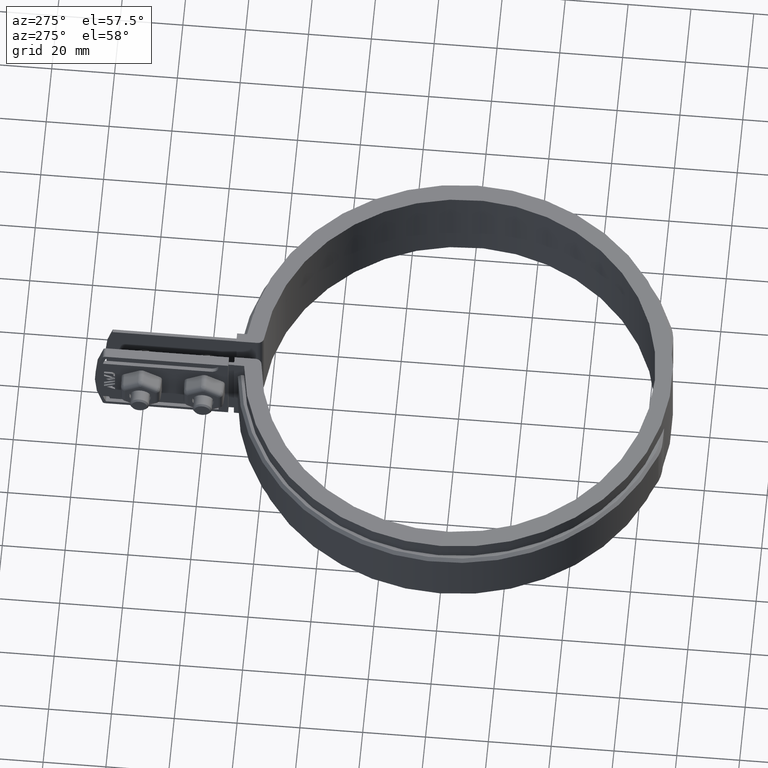
[diagram: clean part render]
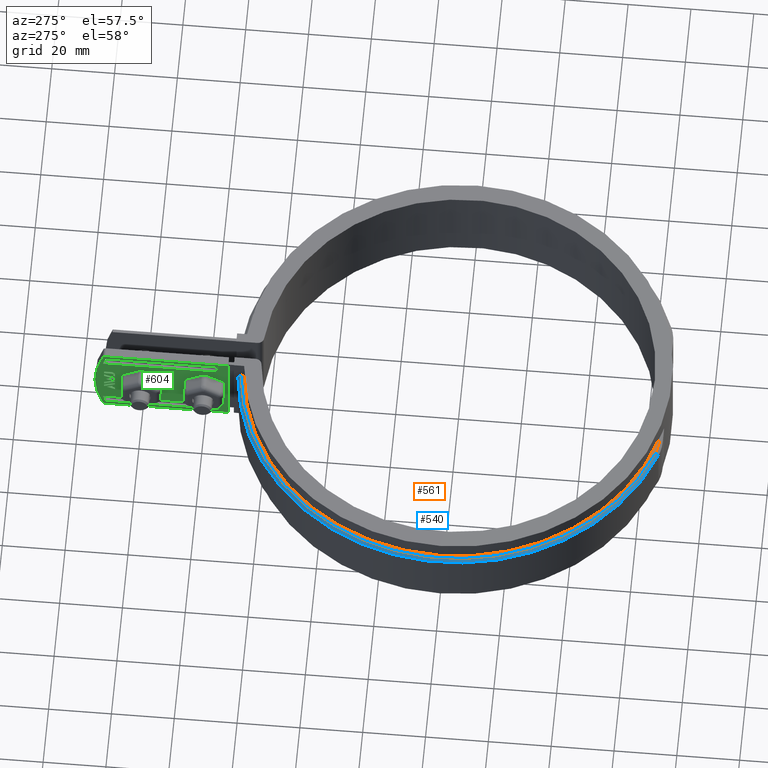
[diagram: same view with three faces highlighted in distinct colors, each labeled with its STEP entity id]
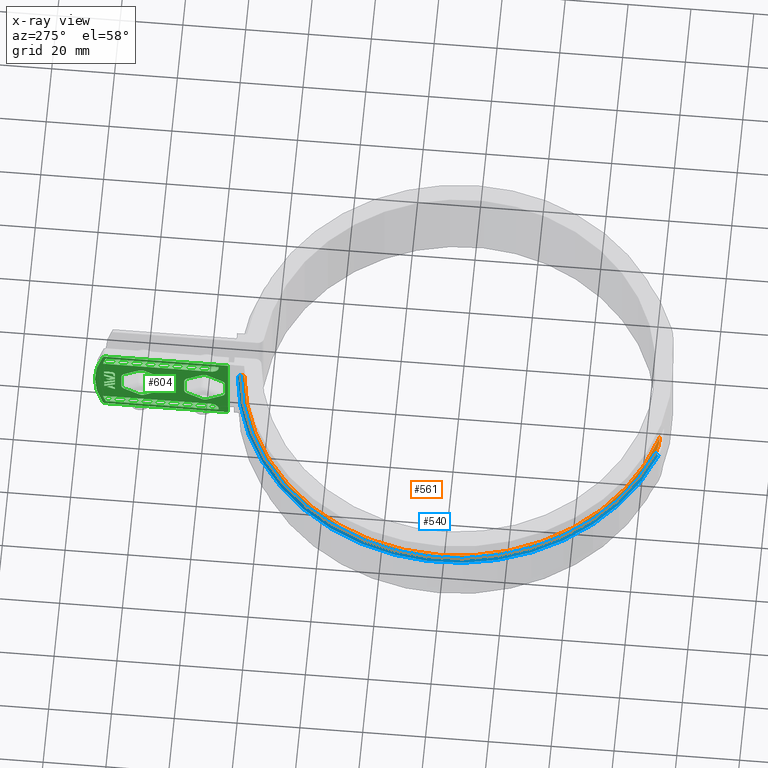
[diagram: x-ray of the same camera — body ghosted, the three highlighted faces saturated]
A machine part, auxiliary view with three faces highlighted in distinct colors.
The next image is the same camera in x-ray (body ghosted, the three faces saturated) — at least one of them is partly hidden behind the body in this view.
Their STEP definitions:

[orange] entity #561 — the highlighted planar face has unit normal (0, 0, 1).
#561 = ADVANCED_FACE( '', ( #1023 ), #1024, .T. );
#1023 = FACE_OUTER_BOUND( '', #2322, .T. );
#1024 = PLANE( '', #2323 );
#2322 = EDGE_LOOP( '', ( #4955, #4956, #4957, #4958, #4959 ) );
#2323 = AXIS2_PLACEMENT_3D( '', #4960, #4961, #4962 );
#4955 = ORIENTED_EDGE( '', *, *, #7170, .T. );
#4956 = ORIENTED_EDGE( '', *, *, #7188, .T. );
#4957 = ORIENTED_EDGE( '', *, *, #7151, .T. );
#4958 = ORIENTED_EDGE( '', *, *, #7126, .T. );
#4959 = ORIENTED_EDGE( '', *, *, #7121, .T. );
#4960 = CARTESIAN_POINT( '', ( 8.67361737988404E-016, 0.000000000000000, 8.50000000000000 ) );
#4961 = DIRECTION( '', ( 0.000000000000000, 0.000000000000000, 1.00000000000000 ) );
#4962 = DIRECTION( '', ( -0.0714285714285714, 0.997445717412067, 0.000000000000000 ) );
#7121 = EDGE_CURVE( '', #8214, #8218, #8220, .T. );
#7126 = EDGE_CURVE( '', #8229, #8214, #8230, .T. );
#7151 = EDGE_CURVE( '', #8272, #8229, #8273, .F. );
#7170 = EDGE_CURVE( '', #8218, #8301, #8303, .T. );
#7188 = EDGE_CURVE( '', #8301, #8272, #8327, .T. );
#8214 = VERTEX_POINT( '', #11806 );
#8218 = VERTEX_POINT( '', #11813 );
#8220 = CIRCLE( '', #11816, 69.0000000000000 );
#8229 = VERTEX_POINT( '', #11831 );
#8230 = LINE( '', #11832, #11833 );
#8272 = VERTEX_POINT( '', #11898 );
#8273 = CIRCLE( '', #11899, 68.0000000000000 );
#8301 = VERTEX_POINT( '', #11933 );
#8303 = CIRCLE( '', #11936, 14.0000000000000 );
#8327 = LINE( '', #11971, #11972 );
#11806 = CARTESIAN_POINT( '', ( -5.99999999999999, 68.7386354243376, 8.50000000000000 ) );
#11813 = CARTESIAN_POINT( '', ( -23.7131492448270, -64.7972727272727, 8.50000000000000 ) );
#11816 = AXIS2_PLACEMENT_3D( '', #13717, #13718, #13719 );
#11831 = CARTESIAN_POINT( '', ( -5.99999999999999, 67.7347768875044, 8.50000000000000 ) );
#11832 = CARTESIAN_POINT( '', ( -5.99999999999999, 71.0000000000000, 8.50000000000000 ) );
#11833 = VECTOR( '', #13723, 1000.00000000000 );
#11898 = CARTESIAN_POINT( '', ( -17.7222318007637, -65.6500000000000, 8.50000000000000 ) );
#11899 = AXIS2_PLACEMENT_3D( '', #13756, #13757, #13758 );
#11933 = CARTESIAN_POINT( '', ( -18.9017856299346, -65.6500000000000, 8.50000000000000 ) );
#11936 = AXIS2_PLACEMENT_3D( '', #13799, #13800, #13801 );
#11971 = CARTESIAN_POINT( '', ( 8.67361737988404E-016, -65.6500000000000, 8.50000000000000 ) );
#11972 = VECTOR( '', #13831, 1000.00000000000 );
#13717 = CARTESIAN_POINT( '', ( 8.67361737988404E-016, 0.000000000000000, 8.50000000000000 ) );
#13718 = DIRECTION( '', ( 0.000000000000000, 0.000000000000000, 1.00000000000000 ) );
#13719 = DIRECTION( '', ( 1.00000000000000, 0.000000000000000, 0.000000000000000 ) );
#13723 = DIRECTION( '', ( 8.32667268468867E-017, 1.00000000000000, 0.000000000000000 ) );
#13756 = CARTESIAN_POINT( '', ( 1.73472347597681E-015, 2.77555756156289E-014, 8.50000000000000 ) );
#13757 = DIRECTION( '', ( 0.000000000000000, 0.000000000000000, 1.00000000000000 ) );
#13758 = DIRECTION( '', ( 1.00000000000000, 0.000000000000000, 0.000000000000000 ) );
#13799 = CARTESIAN_POINT( '', ( -18.9017856299346, -51.6500000000000, 8.50000000000000 ) );
#13800 = DIRECTION( '', ( 0.000000000000000, 0.000000000000000, 1.00000000000000 ) );
#13801 = DIRECTION( '', ( 1.00000000000000, 0.000000000000000, 0.000000000000000 ) );
#13831 = DIRECTION( '', ( 1.00000000000000, 0.000000000000000, 0.000000000000000 ) );

[blue] entity #540 — the highlighted conical surface has half-angle 45 deg.
#540 = ADVANCED_FACE( '', ( #980 ), #981, .T. );
#980 = FACE_OUTER_BOUND( '', #2277, .T. );
#981 = CONICAL_SURFACE( '', #2278, 69.0000000000000, 0.785398163397455 );
#2277 = EDGE_LOOP( '', ( #4734, #4735, #4736, #4737 ) );
#2278 = AXIS2_PLACEMENT_3D( '', #4738, #4739, #4740 );
#4734 = ORIENTED_EDGE( '', *, *, #7118, .F. );
#4735 = ORIENTED_EDGE( '', *, *, #7119, .F. );
#4736 = ORIENTED_EDGE( '', *, *, #7120, .F. );
#4737 = ORIENTED_EDGE( '', *, *, #7121, .F. );
#4738 = CARTESIAN_POINT( '', ( 8.67361737988404E-016, 0.000000000000000, 8.50000000000000 ) );
#4739 = DIRECTION( '', ( 0.000000000000000, 0.000000000000000, -1.00000000000000 ) );
#4740 = DIRECTION( '', ( -1.00000000000000, 0.000000000000000, 0.000000000000000 ) );
#7118 = EDGE_CURVE( '', #8213, #8214, #8215, .T. );
#7119 = EDGE_CURVE( '', #8216, #8213, #8217, .F. );
#7120 = EDGE_CURVE( '', #8218, #8216, #8219, .T. );
#7121 = EDGE_CURVE( '', #8214, #8218, #8220, .T. );
#8213 = VERTEX_POINT( '', #11805 );
#8214 = VERTEX_POINT( '', #11806 );
#8215 = B_SPLINE_CURVE_WITH_KNOTS( '', 3, ( #11807, #11808, #11809, #11810 ), .UNSPECIFIED., .F., .F., ( 4, 4 ), ( 0.000000000000000, 0.00141686604507065 ), .UNSPECIFIED. );
#8216 = VERTEX_POINT( '', #11811 );
#8217 = CIRCLE( '', #11812, 70.0000000000000 );
#8218 = VERTEX_POINT( '', #11813 );
#8219 = LINE( '', #11814, #11815 );
#8220 = CIRCLE( '', #11816, 69.0000000000000 );
#11805 = CARTESIAN_POINT( '', ( -5.99999999999999, 69.7423830966508, 7.50000000000000 ) );
#11806 = CARTESIAN_POINT( '', ( -5.99999999999999, 68.7386354243376, 8.50000000000000 ) );
#11807 = CARTESIAN_POINT( '', ( -5.99999999999999, 69.7423830966508, 7.50000000000000 ) );
#11808 = CARTESIAN_POINT( '', ( -5.99999999999999, 69.4078094787816, 7.83334230616380 ) );
#11809 = CARTESIAN_POINT( '', ( -5.99999999999999, 69.0732270511451, 8.16667577027313 ) );
#11810 = CARTESIAN_POINT( '', ( -5.99999999999999, 68.7386354243376, 8.50000000000001 ) );
#11811 = CARTESIAN_POINT( '', ( -24.0568180744622, -65.7363636363636, 7.50000000000000 ) );
#11812 = AXIS2_PLACEMENT_3D( '', #13713, #13714, #13715 );
#11813 = CARTESIAN_POINT( '', ( -23.7131492448270, -64.7972727272727, 8.50000000000000 ) );
#11814 = CARTESIAN_POINT( '', ( -23.7131492448270, -64.7972727272727, 8.50000000000000 ) );
#11815 = VECTOR( '', #13716, 1000.00000000000 );
#11816 = AXIS2_PLACEMENT_3D( '', #13717, #13718, #13719 );
#13713 = CARTESIAN_POINT( '', ( 8.67361737988404E-016, 0.000000000000000, 7.50000000000000 ) );
#13714 = DIRECTION( '', ( 0.000000000000000, 0.000000000000000, 1.00000000000000 ) );
#13715 = DIRECTION( '', ( 1.00000000000000, 0.000000000000000, 0.000000000000000 ) );
#13716 = DIRECTION( '', ( -0.243010559917481, -0.664037549968828, -0.707106781186539 ) );
#13717 = CARTESIAN_POINT( '', ( 8.67361737988404E-016, 0.000000000000000, 8.50000000000000 ) );
#13718 = DIRECTION( '', ( 0.000000000000000, 0.000000000000000, 1.00000000000000 ) );
#13719 = DIRECTION( '', ( 1.00000000000000, 0.000000000000000, 0.000000000000000 ) );

[green] entity #604 — the highlighted planar face has unit normal (-1, 0, -0).
#604 = ADVANCED_FACE( '', ( #1115, #1116, #1117, #1118, #1119, #1120, #1121, #1122, #1123, #1124 ), #1125, .T. );
#1115 = FACE_BOUND( '', #2414, .T. );
#1116 = FACE_BOUND( '', #2415, .T. );
#1117 = FACE_BOUND( '', #2416, .T. );
#1118 = FACE_BOUND( '', #2417, .T. );
#1119 = FACE_BOUND( '', #2418, .T. );
#1120 = FACE_OUTER_BOUND( '', #2419, .T. );
#1121 = FACE_BOUND( '', #2420, .T. );
#1122 = FACE_BOUND( '', #2421, .T. );
#1123 = FACE_BOUND( '', #2422, .T. );
#1124 = FACE_BOUND( '', #2423, .T. );
#1125 = PLANE( '', #2424 );
#2414 = EDGE_LOOP( '', ( #5259, #5260, #5261, #5262, #5263 ) );
#2415 = EDGE_LOOP( '', ( #5264, #5265, #5266, #5267 ) );
#2416 = EDGE_LOOP( '', ( #5268, #5269, #5270, #5271, #5272 ) );
#2417 = EDGE_LOOP( '', ( #5273, #5274, #5275, #5276, #5277, #5278, #5279, #5280, #5281, #5282, #5283, #5284 ) );
#2418 = EDGE_LOOP( '', ( #5285, #5286, #5287, #5288, #5289, #5290, #5291, #5292, #5293, #5294, #5295, #5296 ) );
#2419 = EDGE_LOOP( '', ( #5297, #5298, #5299, #5300, #5301, #5302 ) );
#2420 = EDGE_LOOP( '', ( #5303, #5304, #5305, #5306, #5307 ) );
#2421 = EDGE_LOOP( '', ( #5308, #5309, #5310, #5311, #5312, #5313, #5314, #5315, #5316, #5317, #5318, #5319, #5320, #5321, #5322, #5323, #5324, #5325, #5326, #5327, #5328, #5329, #5330, #5331, #5332, #5333, #5334, #5335, #5336, #5337, #5338, #5339, #5340, #5341, #5342, #5343, #5344, #5345, #5346, #5347 ) );
#2422 = EDGE_LOOP( '', ( #5348, #5349, #5350, #5351, #5352, #5353, #5354 ) );
#2423 = EDGE_LOOP( '', ( #5355, #5356, #5357, #5358 ) );
#2424 = AXIS2_PLACEMENT_3D( '', #5359, #5360, #5361 );
#5259 = ORIENTED_EDGE( '', *, *, #7249, .T. );
#5260 = ORIENTED_EDGE( '', *, *, #7250, .T. );
#5261 = ORIENTED_EDGE( '', *, *, #7251, .T. );
#5262 = ORIENTED_EDGE( '', *, *, #7252, .T. );
#5263 = ORIENTED_EDGE( '', *, *, #7253, .T. );
#5264 = ORIENTED_EDGE( '', *, *, #7254, .T. );
#5265 = ORIENTED_EDGE( '', *, *, #7255, .T. );
#5266 = ORIENTED_EDGE( '', *, *, #7256, .T. );
#5267 = ORIENTED_EDGE( '', *, *, #7257, .T. );
#5268 = ORIENTED_EDGE( '', *, *, #7258, .T. );
#5269 = ORIENTED_EDGE( '', *, *, #7259, .F. );
#5270 = ORIENTED_EDGE( '', *, *, #7260, .T. );
#5271 = ORIENTED_EDGE( '', *, *, #7261, .T. );
#5272 = ORIENTED_EDGE( '', *, *, #7262, .T. );
#5273 = ORIENTED_EDGE( '', *, *, #7263, .F. );
#5274 = ORIENTED_EDGE( '', *, *, #7264, .F. );
#5275 = ORIENTED_EDGE( '', *, *, #7265, .F. );
#5276 = ORIENTED_EDGE( '', *, *, #7266, .F. );
#5277 = ORIENTED_EDGE( '', *, *, #7267, .F. );
#5278 = ORIENTED_EDGE( '', *, *, #7268, .F. );
#5279 = ORIENTED_EDGE( '', *, *, #7269, .F. );
#5280 = ORIENTED_EDGE( '', *, *, #7270, .F. );
#5281 = ORIENTED_EDGE( '', *, *, #7271, .F. );
#5282 = ORIENTED_EDGE( '', *, *, #7272, .F. );
#5283 = ORIENTED_EDGE( '', *, *, #7273, .F. );
#5284 = ORIENTED_EDGE( '', *, *, #7274, .F. );
#5285 = ORIENTED_EDGE( '', *, *, #7275, .F. );
#5286 = ORIENTED_EDGE( '', *, *, #7276, .F. );
#5287 = ORIENTED_EDGE( '', *, *, #7277, .F. );
#5288 = ORIENTED_EDGE( '', *, *, #7278, .F. );
#5289 = ORIENTED_EDGE( '', *, *, #7279, .F. );
#5290 = ORIENTED_EDGE( '', *, *, #7280, .F. );
#5291 = ORIENTED_EDGE( '', *, *, #7281, .F. );
#5292 = ORIENTED_EDGE( '', *, *, #7282, .F. );
#5293 = ORIENTED_EDGE( '', *, *, #7283, .F. );
#5294 = ORIENTED_EDGE( '', *, *, #7284, .F. );
#5295 = ORIENTED_EDGE( '', *, *, #7285, .F. );
#5296 = ORIENTED_EDGE( '', *, *, #7286, .F. );
#5297 = ORIENTED_EDGE( '', *, *, #7287, .T. );
#5298 = ORIENTED_EDGE( '', *, *, #7288, .T. );
#5299 = ORIENTED_EDGE( '', *, *, #7289, .T. );
#5300 = ORIENTED_EDGE( '', *, *, #7290, .T. );
#5301 = ORIENTED_EDGE( '', *, *, #7291, .T. );
#5302 = ORIENTED_EDGE( '', *, *, #7292, .T. );
#5303 = ORIENTED_EDGE( '', *, *, #7293, .T. );
#5304 = ORIENTED_EDGE( '', *, *, #7294, .T. );
#5305 = ORIENTED_EDGE( '', *, *, #7295, .T. );
#5306 = ORIENTED_EDGE( '', *, *, #7296, .T. );
#5307 = ORIENTED_EDGE( '', *, *, #7297, .F. );
#5308 = ORIENTED_EDGE( '', *, *, #7298, .T. );
#5309 = ORIENTED_EDGE( '', *, *, #7299, .T. );
#5310 = ORIENTED_EDGE( '', *, *, #7300, .T. );
#5311 = ORIENTED_EDGE( '', *, *, #7301, .T. );
#5312 = ORIENTED_EDGE( '', *, *, #7302, .T. );
#5313 = ORIENTED_EDGE( '', *, *, #7303, .T. );
#5314 = ORIENTED_EDGE( '', *, *, #7304, .T. );
#5315 = ORIENTED_EDGE( '', *, *, #7305, .T. );
#5316 = ORIENTED_EDGE( '', *, *, #7306, .T. );
#5317 = ORIENTED_EDGE( '', *, *, #7307, .T. );
#5318 = ORIENTED_EDGE( '', *, *, #7308, .T. );
#5319 = ORIENTED_EDGE( '', *, *, #7309, .T. );
#5320 = ORIENTED_EDGE( '', *, *, #7310, .T. );
#5321 = ORIENTED_EDGE( '', *, *, #7311, .T. );
#5322 = ORIENTED_EDGE( '', *, *, #7312, .T. );
#5323 = ORIENTED_EDGE( '', *, *, #7313, .T. );
#5324 = ORIENTED_EDGE( '', *, *, #7314, .T. );
#5325 = ORIENTED_EDGE( '', *, *, #7315, .T. );
#5326 = ORIENTED_EDGE( '', *, *, #7316, .T. );
#5327 = ORIENTED_EDGE( '', *, *, #7317, .T. );
#5328 = ORIENTED_EDGE( '', *, *, #7318, .T. );
#5329 = ORIENTED_EDGE( '', *, *, #7319, .T. );
#5330 = ORIENTED_EDGE( '', *, *, #7320, .T. );
#5331 = ORIENTED_EDGE( '', *, *, #7321, .T. );
#5332 = ORIENTED_EDGE( '', *, *, #7322, .T. );
#5333 = ORIENTED_EDGE( '', *, *, #7323, .T. );
#5334 = ORIENTED_EDGE( '', *, *, #7324, .T. );
#5335 = ORIENTED_EDGE( '', *, *, #7325, .T. );
#5336 = ORIENTED_EDGE( '', *, *, #7326, .T. );
#5337 = ORIENTED_EDGE( '', *, *, #7327, .T. );
#5338 = ORIENTED_EDGE( '', *, *, #7328, .T. );
#5339 = ORIENTED_EDGE( '', *, *, #7329, .T. );
#5340 = ORIENTED_EDGE( '', *, *, #7330, .T. );
#5341 = ORIENTED_EDGE( '', *, *, #7331, .T. );
#5342 = ORIENTED_EDGE( '', *, *, #7332, .T. );
#5343 = ORIENTED_EDGE( '', *, *, #7333, .T. );
#5344 = ORIENTED_EDGE( '', *, *, #7334, .T. );
#5345 = ORIENTED_EDGE( '', *, *, #7335, .T. );
#5346 = ORIENTED_EDGE( '', *, *, #7336, .T. );
#5347 = ORIENTED_EDGE( '', *, *, #7337, .T. );
#5348 = ORIENTED_EDGE( '', *, *, #7338, .T. );
#5349 = ORIENTED_EDGE( '', *, *, #7339, .T. );
#5350 = ORIENTED_EDGE( '', *, *, #7340, .T. );
#5351 = ORIENTED_EDGE( '', *, *, #7341, .T. );
#5352 = ORIENTED_EDGE( '', *, *, #7342, .T. );
#5353 = ORIENTED_EDGE( '', *, *, #7343, .T. );
#5354 = ORIENTED_EDGE( '', *, *, #7344, .T. );
#5355 = ORIENTED_EDGE( '', *, *, #7345, .T. );
#5356 = ORIENTED_EDGE( '', *, *, #7346, .T. );
#5357 = ORIENTED_EDGE( '', *, *, #7347, .T. );
#5358 = ORIENTED_EDGE( '', *, *, #7348, .T. );
#5359 = CARTESIAN_POINT( '', ( -6.20000000000013, 78.8103335351257, -7.80278619494368E-012 ) );
#5360 = DIRECTION( '', ( -1.00000000000000, 7.00331983426594E-017, -2.99848040556711E-018 ) );
#5361 = DIRECTION( '', ( 7.00331983426594E-017, 1.00000000000000, 1.27307474615306E-016 ) );
#7249 = EDGE_CURVE( '', #8424, #8425, #8426, .T. );
#7250 = EDGE_CURVE( '', #8425, #8427, #8428, .T. );
#7251 = EDGE_CURVE( '', #8427, #8429, #8430, .T. );
#7252 = EDGE_CURVE( '', #8429, #8431, #8432, .T. );
#7253 = EDGE_CURVE( '', #8431, #8424, #8433, .T. );
#7254 = EDGE_CURVE( '', #8434, #8435, #8436, .T. );
#7255 = EDGE_CURVE( '', #8435, #8437, #8438, .T. );
#7256 = EDGE_CURVE( '', #8437, #8439, #8440, .T. );
#7257 = EDGE_CURVE( '', #8439, #8434, #8441, .T. );
#7258 = EDGE_CURVE( '', #8442, #8443, #8444, .F. );
#7259 = EDGE_CURVE( '', #8445, #8443, #8446, .T. );
#7260 = EDGE_CURVE( '', #8445, #8447, #8448, .T. );
#7261 = EDGE_CURVE( '', #8447, #8449, #8450, .T. );
#7262 = EDGE_CURVE( '', #8449, #8442, #8451, .T. );
#7263 = EDGE_CURVE( '', #8452, #8453, #8454, .F. );
#7264 = EDGE_CURVE( '', #8455, #8452, #8456, .T. );
#7265 = EDGE_CURVE( '', #8457, #8455, #8458, .F. );
#7266 = EDGE_CURVE( '', #8459, #8457, #8460, .T. );
#7267 = EDGE_CURVE( '', #8461, #8459, #8462, .F. );
#7268 = EDGE_CURVE( '', #8463, #8461, #8464, .T. );
#7269 = EDGE_CURVE( '', #8465, #8463, #8466, .F. );
#7270 = EDGE_CURVE( '', #8467, #8465, #8468, .T. );
#7271 = EDGE_CURVE( '', #8469, #8467, #8470, .F. );
#7272 = EDGE_CURVE( '', #8471, #8469, #8472, .T. );
#7273 = EDGE_CURVE( '', #8473, #8471, #8474, .F. );
#7274 = EDGE_CURVE( '', #8453, #8473, #8475, .T. );
#7275 = EDGE_CURVE( '', #8476, #8477, #8478, .F. );
#7276 = EDGE_CURVE( '', #8479, #8476, #8480, .T. );
#7277 = EDGE_CURVE( '', #8481, #8479, #8482, .F. );
#7278 = EDGE_CURVE( '', #8483, #8481, #8484, .T. );
#7279 = EDGE_CURVE( '', #8485, #8483, #8486, .F. );
#7280 = EDGE_CURVE( '', #8487, #8485, #8488, .T. );
#7281 = EDGE_CURVE( '', #8489, #8487, #8490, .F. );
#7282 = EDGE_CURVE( '', #8491, #8489, #8492, .T. );
#7283 = EDGE_CURVE( '', #8493, #8491, #8494, .F. );
#7284 = EDGE_CURVE( '', #8495, #8493, #8496, .T. );
#7285 = EDGE_CURVE( '', #8497, #8495, #8498, .F. );
#7286 = EDGE_CURVE( '', #8477, #8497, #8499, .T. );
#7287 = EDGE_CURVE( '', #8500, #8501, #8502, .T. );
#7288 = EDGE_CURVE( '', #8501, #8503, #8504, .T. );
#7289 = EDGE_CURVE( '', #8503, #8505, #8506, .T. );
#7290 = EDGE_CURVE( '', #8505, #8507, #8508, .T. );
#7291 = EDGE_CURVE( '', #8507, #8509, #8510, .T. );
#7292 = EDGE_CURVE( '', #8509, #8500, #8511, .T. );
#7293 = EDGE_CURVE( '', #8512, #8513, #8514, .F. );
#7294 = EDGE_CURVE( '', #8513, #8515, #8516, .T. );
#7295 = EDGE_CURVE( '', #8515, #8517, #8518, .T. );
#7296 = EDGE_CURVE( '', #8517, #8519, #8520, .T. );
#7297 = EDGE_CURVE( '', #8512, #8519, #8521, .T. );
#7298 = EDGE_CURVE( '', #8522, #8523, #8524, .T. );
#7299 = EDGE_CURVE( '', #8523, #8525, #8526, .T. );
#7300 = EDGE_CURVE( '', #8525, #8527, #8528, .T. );
#7301 = EDGE_CURVE( '', #8527, #8529, #8530, .T. );
#7302 = EDGE_CURVE( '', #8529, #8531, #8532, .T. );
#7303 = EDGE_CURVE( '', #8531, #8533, #8534, .T. );
#7304 = EDGE_CURVE( '', #8533, #8535, #8536, .T. );
#7305 = EDGE_CURVE( '', #8535, #8537, #8538, .T. );
#7306 = EDGE_CURVE( '', #8537, #8539, #8540, .T. );
#7307 = EDGE_CURVE( '', #8539, #8541, #8542, .T. );
#7308 = EDGE_CURVE( '', #8541, #8543, #8544, .T. );
#7309 = EDGE_CURVE( '', #8543, #8545, #8546, .T. );
#7310 = EDGE_CURVE( '', #8545, #8547, #8548, .T. );
#7311 = EDGE_CURVE( '', #8547, #8549, #8550, .T. );
#7312 = EDGE_CURVE( '', #8549, #8551, #8552, .T. );
#7313 = EDGE_CURVE( '', #8551, #8553, #8554, .T. );
#7314 = EDGE_CURVE( '', #8553, #8555, #8556, .T. );
#7315 = EDGE_CURVE( '', #8555, #8557, #8558, .T. );
#7316 = EDGE_CURVE( '', #8557, #8559, #8560, .T. );
#7317 = EDGE_CURVE( '', #8559, #8561, #8562, .T. );
#7318 = EDGE_CURVE( '', #8561, #8563, #8564, .T. );
#7319 = EDGE_CURVE( '', #8563, #8565, #8566, .T. );
#7320 = EDGE_CURVE( '', #8565, #8567, #8568, .T. );
#7321 = EDGE_CURVE( '', #8567, #8569, #8570, .T. );
#7322 = EDGE_CURVE( '', #8569, #8571, #8572, .T. );
#7323 = EDGE_CURVE( '', #8571, #8573, #8574, .T. );
#7324 = EDGE_CURVE( '', #8573, #8575, #8576, .T. );
#7325 = EDGE_CURVE( '', #8575, #8577, #8578, .T. );
#7326 = EDGE_CURVE( '', #8577, #8579, #8580, .T. );
#7327 = EDGE_CURVE( '', #8579, #8581, #8582, .T. );
#7328 = EDGE_CURVE( '', #8581, #8583, #8584, .T. );
#7329 = EDGE_CURVE( '', #8583, #8585, #8586, .T. );
#7330 = EDGE_CURVE( '', #8585, #8587, #8588, .T. );
#7331 = EDGE_CURVE( '', #8587, #8589, #8590, .T. );
#7332 = EDGE_CURVE( '', #8589, #8591, #8592, .T. );
#7333 = EDGE_CURVE( '', #8591, #8593, #8594, .T. );
#7334 = EDGE_CURVE( '', #8593, #8595, #8596, .T. );
#7335 = EDGE_CURVE( '', #8595, #8597, #8598, .T. );
#7336 = EDGE_CURVE( '', #8597, #8599, #8600, .T. );
#7337 = EDGE_CURVE( '', #8599, #8522, #8601, .F. );
#7338 = EDGE_CURVE( '', #8602, #8603, #8604, .T. );
#7339 = EDGE_CURVE( '', #8603, #8605, #8606, .T. );
#7340 = EDGE_CURVE( '', #8605, #8607, #8608, .T. );
#7341 = EDGE_CURVE( '', #8607, #8609, #8610, .T. );
#7342 = EDGE_CURVE( '', #8609, #8611, #8612, .T. );
#7343 = EDGE_CURVE( '', #8611, #8613, #8614, .T. );
#7344 = EDGE_CURVE( '', #8613, #8602, #8615, .T. );
#7345 = EDGE_CURVE( '', #8616, #8617, #8618, .T. );
#7346 = EDGE_CURVE( '', #8617, #8619, #8620, .T. );
#7347 = EDGE_CURVE( '', #8619, #8621, #8622, .T. );
#7348 = EDGE_CURVE( '', #8621, #8616, #8623, .T. );
#8424 = VERTEX_POINT( '', #12117 );
#8425 = VERTEX_POINT( '', #12118 );
#8426 = LINE( '', #12119, #12120 );
#8427 = VERTEX_POINT( '', #12121 );
#8428 = LINE( '', #12122, #12123 );
#8429 = VERTEX_POINT( '', #12124 );
#8430 = LINE( '', #12125, #12126 );
#8431 = VERTEX_POINT( '', #12127 );
#8432 = LINE( '', #12128, #12129 );
#8433 = LINE( '', #12130, #12131 );
#8434 = VERTEX_POINT( '', #12132 );
#8435 = VERTEX_POINT( '', #12133 );
#8436 = LINE( '', #12134, #12135 );
#8437 = VERTEX_POINT( '', #12136 );
#8438 = LINE( '', #12137, #12138 );
#8439 = VERTEX_POINT( '', #12139 );
#8440 = LINE( '', #12140, #12141 );
#8441 = LINE( '', #12142, #12143 );
#8442 = VERTEX_POINT( '', #12144 );
#8443 = VERTEX_POINT( '', #12145 );
#8444 = CIRCLE( '', #12146, 35.2000000000000 );
#8445 = VERTEX_POINT( '', #12147 );
#8446 = LINE( '', #12148, #12149 );
#8447 = VERTEX_POINT( '', #12150 );
#8448 = LINE( '', #12151, #12152 );
#8449 = VERTEX_POINT( '', #12153 );
#8450 = CIRCLE( '', #12154, 2.50000000000000 );
#8451 = LINE( '', #12155, #12156 );
#8452 = VERTEX_POINT( '', #12157 );
#8453 = VERTEX_POINT( '', #12158 );
#8454 = LINE( '', #12159, #12160 );
#8455 = VERTEX_POINT( '', #12161 );
#8456 = CIRCLE( '', #12162, 1.77252045227181 );
#8457 = VERTEX_POINT( '', #12163 );
#8458 = LINE( '', #12164, #12165 );
#8459 = VERTEX_POINT( '', #12166 );
#8460 = CIRCLE( '', #12167, 1.77252045227181 );
#8461 = VERTEX_POINT( '', #12168 );
#8462 = LINE( '', #12169, #12170 );
#8463 = VERTEX_POINT( '', #12171 );
#8464 = CIRCLE( '', #12172, 1.77252045227182 );
#8465 = VERTEX_POINT( '', #12173 );
#8466 = LINE( '', #12174, #12175 );
#8467 = VERTEX_POINT( '', #12176 );
#8468 = CIRCLE( '', #12177, 1.77252045227182 );
#8469 = VERTEX_POINT( '', #12178 );
#8470 = LINE( '', #12179, #12180 );
#8471 = VERTEX_POINT( '', #12181 );
#8472 = CIRCLE( '', #12182, 1.77252045227181 );
#8473 = VERTEX_POINT( '', #12183 );
#8474 = LINE( '', #12184, #12185 );
#8475 = CIRCLE( '', #12186, 1.77252045227182 );
#8476 = VERTEX_POINT( '', #12187 );
#8477 = VERTEX_POINT( '', #12188 );
#8478 = LINE( '', #12189, #12190 );
#8479 = VERTEX_POINT( '', #12191 );
#8480 = CIRCLE( '', #12192, 1.77252045227181 );
#8481 = VERTEX_POINT( '', #12193 );
#8482 = LINE( '', #12194, #12195 );
#8483 = VERTEX_POINT( '', #12196 );
#8484 = CIRCLE( '', #12197, 1.77252045227181 );
#8485 = VERTEX_POINT( '', #12198 );
#8486 = LINE( '', #12199, #12200 );
#8487 = VERTEX_POINT( '', #12201 );
#8488 = CIRCLE( '', #12202, 1.77252045227181 );
#8489 = VERTEX_POINT( '', #12203 );
#8490 = LINE( '', #12204, #12205 );
#8491 = VERTEX_POINT( '', #12206 );
#8492 = CIRCLE( '', #12207, 1.77252045227182 );
#8493 = VERTEX_POINT( '', #12208 );
#8494 = LINE( '', #12209, #12210 );
#8495 = VERTEX_POINT( '', #12211 );
#8496 = CIRCLE( '', #12212, 1.77252045227181 );
#8497 = VERTEX_POINT( '', #12213 );
#8498 = LINE( '', #12214, #12215 );
#8499 = CIRCLE( '', #12216, 1.77252045227182 );
#8500 = VERTEX_POINT( '', #12217 );
#8501 = VERTEX_POINT( '', #12218 );
#8502 = CIRCLE( '', #12219, 36.4000000000000 );
#8503 = VERTEX_POINT( '', #12220 );
#8504 = CIRCLE( '', #12221, 1.00000000000000 );
#8505 = VERTEX_POINT( '', #12222 );
#8506 = LINE( '', #12223, #12224 );
#8507 = VERTEX_POINT( '', #12225 );
#8508 = LINE( '', #12226, #12227 );
#8509 = VERTEX_POINT( '', #12228 );
#8510 = LINE( '', #12229, #12230 );
#8511 = CIRCLE( '', #12231, 1.00000000000000 );
#8512 = VERTEX_POINT( '', #12232 );
#8513 = VERTEX_POINT( '', #12233 );
#8514 = CIRCLE( '', #12234, 35.2000000000000 );
#8515 = VERTEX_POINT( '', #12235 );
#8516 = LINE( '', #12236, #12237 );
#8517 = VERTEX_POINT( '', #12238 );
#8518 = CIRCLE( '', #12239, 2.50000000000000 );
#8519 = VERTEX_POINT( '', #12240 );
#8520 = LINE( '', #12241, #12242 );
#8521 = LINE( '', #12243, #12244 );
#8522 = VERTEX_POINT( '', #12245 );
#8523 = VERTEX_POINT( '', #12246 );
#8524 = LINE( '', #12247, #12248 );
#8525 = VERTEX_POINT( '', #12249 );
#8526 = LINE( '', #12250, #12251 );
#8527 = VERTEX_POINT( '', #12252 );
#8528 = LINE( '', #12253, #12254 );
#8529 = VERTEX_POINT( '', #12255 );
#8530 = LINE( '', #12256, #12257 );
#8531 = VERTEX_POINT( '', #12258 );
#8532 = LINE( '', #12259, #12260 );
#8533 = VERTEX_POINT( '', #12261 );
#8534 = LINE( '', #12262, #12263 );
#8535 = VERTEX_POINT( '', #12264 );
#8536 = LINE( '', #12265, #12266 );
#8537 = VERTEX_POINT( '', #12267 );
#8538 = LINE( '', #12268, #12269 );
#8539 = VERTEX_POINT( '', #12270 );
#8540 = LINE( '', #12271, #12272 );
#8541 = VERTEX_POINT( '', #12273 );
#8542 = LINE( '', #12274, #12275 );
#8543 = VERTEX_POINT( '', #12276 );
#8544 = LINE( '', #12277, #12278 );
#8545 = VERTEX_POINT( '', #12279 );
#8546 = LINE( '', #12280, #12281 );
#8547 = VERTEX_POINT( '', #12282 );
#8548 = LINE( '', #12283, #12284 );
#8549 = VERTEX_POINT( '', #12285 );
#8550 = LINE( '', #12286, #12287 );
#8551 = VERTEX_POINT( '', #12288 );
#8552 = LINE( '', #12289, #12290 );
#8553 = VERTEX_POINT( '', #12291 );
#8554 = LINE( '', #12292, #12293 );
#8555 = VERTEX_POINT( '', #12294 );
#8556 = LINE( '', #12295, #12296 );
#8557 = VERTEX_POINT( '', #12297 );
#8558 = LINE( '', #12298, #12299 );
#8559 = VERTEX_POINT( '', #12300 );
#8560 = LINE( '', #12301, #12302 );
#8561 = VERTEX_POINT( '', #12303 );
#8562 = LINE( '', #12304, #12305 );
#8563 = VERTEX_POINT( '', #12306 );
#8564 = LINE( '', #12307, #12308 );
#8565 = VERTEX_POINT( '', #12309 );
#8566 = LINE( '', #12310, #12311 );
#8567 = VERTEX_POINT( '', #12312 );
#8568 = LINE( '', #12313, #12314 );
#8569 = VERTEX_POINT( '', #12315 );
#8570 = LINE( '', #12316, #12317 );
#8571 = VERTEX_POINT( '', #12318 );
#8572 = LINE( '', #12319, #12320 );
#8573 = VERTEX_POINT( '', #12321 );
#8574 = LINE( '', #12322, #12323 );
#8575 = VERTEX_POINT( '', #12324 );
#8576 = LINE( '', #12325, #12326 );
#8577 = VERTEX_POINT( '', #12327 );
#8578 = LINE( '', #12328, #12329 );
#8579 = VERTEX_POINT( '', #12330 );
#8580 = LINE( '', #12331, #12332 );
#8581 = VERTEX_POINT( '', #12333 );
#8582 = LINE( '', #12334, #12335 );
#8583 = VERTEX_POINT( '', #12336 );
#8584 = LINE( '', #12337, #12338 );
#8585 = VERTEX_POINT( '', #12339 );
#8586 = LINE( '', #12340, #12341 );
#8587 = VERTEX_POINT( '', #12342 );
#8588 = LINE( '', #12343, #12344 );
#8589 = VERTEX_POINT( '', #12345 );
#8590 = LINE( '', #12346, #12347 );
#8591 = VERTEX_POINT( '', #12348 );
#8592 = LINE( '', #12349, #12350 );
#8593 = VERTEX_POINT( '', #12351 );
#8594 = LINE( '', #12352, #12353 );
#8595 = VERTEX_POINT( '', #12354 );
#8596 = LINE( '', #12355, #12356 );
#8597 = VERTEX_POINT( '', #12357 );
#8598 = LINE( '', #12358, #12359 );
#8599 = VERTEX_POINT( '', #12360 );
#8600 = LINE( '', #12361, #12362 );
#8601 = CIRCLE( '', #12363, 1.16712912069193 );
#8602 = VERTEX_POINT( '', #12364 );
#8603 = VERTEX_POINT( '', #12365 );
#8604 = LINE( '', #12366, #12367 );
#8605 = VERTEX_POINT( '', #12368 );
#8606 = LINE( '', #12369, #12370 );
#8607 = VERTEX_POINT( '', #12371 );
#8608 = LINE( '', #12372, #12373 );
#8609 = VERTEX_POINT( '', #12374 );
#8610 = LINE( '', #12375, #12376 );
#8611 = VERTEX_POINT( '', #12377 );
#8612 = LINE( '', #12378, #12379 );
#8613 = VERTEX_POINT( '', #12380 );
#8614 = LINE( '', #12381, #12382 );
#8615 = LINE( '', #12383, #12384 );
#8616 = VERTEX_POINT( '', #12385 );
#8617 = VERTEX_POINT( '', #12386 );
#8618 = LINE( '', #12387, #12388 );
#8619 = VERTEX_POINT( '', #12389 );
#8620 = LINE( '', #12390, #12391 );
#8621 = VERTEX_POINT( '', #12392 );
#8622 = LINE( '', #12393, #12394 );
#8623 = LINE( '', #12395, #12396 );
#12117 = CARTESIAN_POINT( '', ( -6.20000000000013, 109.622031551900, -3.14273100000780 ) );
#12118 = CARTESIAN_POINT( '', ( -6.20000000000013, 109.622031551900, -3.70490135200780 ) );
#12119 = CARTESIAN_POINT( '', ( -6.20000000000013, 109.622031551900, -7.80105147146770E-012 ) );
#12120 = VECTOR( '', #13916, 1000.00000000000 );
#12121 = CARTESIAN_POINT( '', ( -6.20000000000013, 108.814025647900, -4.03159444400780 ) );
#12122 = CARTESIAN_POINT( '', ( -6.20000000000013, 84.4270454197546, -13.8917426630184 ) );
#12123 = VECTOR( '', #13917, 1000.00000000000 );
#12124 = CARTESIAN_POINT( '', ( -6.20000000000013, 108.814025647900, -4.93535192000780 ) );
#12125 = CARTESIAN_POINT( '', ( -6.20000000000013, 108.814025647900, -7.80105147146770E-012 ) );
#12126 = VECTOR( '', #13918, 1000.00000000000 );
#12127 = CARTESIAN_POINT( '', ( -6.20000000000013, 111.437062761900, -3.87571280800779 ) );
#12128 = CARTESIAN_POINT( '', ( -6.20000000000013, 84.7338538058955, -14.6631181690176 ) );
#12129 = VECTOR( '', #13919, 1000.00000000000 );
#12130 = CARTESIAN_POINT( '', ( -6.20000000000013, 82.0395121926003, 7.99618760248517 ) );
#12131 = VECTOR( '', #13920, 1000.00000000000 );
#12132 = CARTESIAN_POINT( '', ( -6.20000000000013, 112.312464471900, -2.04496288600779 ) );
#12133 = CARTESIAN_POINT( '', ( -6.20000000000013, 112.312464471900, -1.14094322400781 ) );
#12134 = CARTESIAN_POINT( '', ( -6.20000000000013, 112.312464471900, -7.80105147146770E-012 ) );
#12135 = VECTOR( '', #13921, 1000.00000000000 );
#12136 = CARTESIAN_POINT( '', ( -6.20000000000013, 108.814025647900, 0.272669549992199 ) );
#12137 = CARTESIAN_POINT( '', ( -6.20000000000013, 83.1162452143337, 10.6563613942310 ) );
#12138 = VECTOR( '', #13922, 1000.00000000000 );
#12139 = CARTESIAN_POINT( '', ( -6.20000000000013, 108.814025647900, -0.631350890007796 ) );
#12140 = CARTESIAN_POINT( '', ( -6.20000000000013, 108.814025647900, -7.80105147146770E-012 ) );
#12141 = VECTOR( '', #13923, 1000.00000000000 );
#12142 = CARTESIAN_POINT( '', ( -6.20000000000013, 82.8022243871590, 9.87922143942610 ) );
#12143 = VECTOR( '', #13924, 1000.00000000000 );
#12144 = CARTESIAN_POINT( '', ( -6.20000000000013, 112.704138278766, 9.49999999999220 ) );
#12145 = CARTESIAN_POINT( '', ( -6.20000000000013, 111.716108104341, 12.4999999999922 ) );
#12146 = AXIS2_PLACEMENT_3D( '', #13925, #13926, #13927 );
#12147 = CARTESIAN_POINT( '', ( -6.20000000000013, 75.8103335351257, 12.4999999999922 ) );
#12148 = CARTESIAN_POINT( '', ( -6.20000000000013, 72.8103335351256, 12.4999999999922 ) );
#12149 = VECTOR( '', #13928, 1000.00000000000 );
#12150 = CARTESIAN_POINT( '', ( -6.20000000000013, 75.8103335351257, 11.9999999999922 ) );
#12151 = CARTESIAN_POINT( '', ( -6.20000000000013, 75.8103335351257, 13.6999999999922 ) );
#12152 = VECTOR( '', #13929, 1000.00000000000 );
#12153 = CARTESIAN_POINT( '', ( -6.20000000000013, 78.3103335351257, 9.49999999999220 ) );
#12154 = AXIS2_PLACEMENT_3D( '', #13930, #13931, #13932 );
#12155 = CARTESIAN_POINT( '', ( -6.20000000000013, 78.3103335351257, 9.49999999999220 ) );
#12156 = VECTOR( '', #13933, 1000.00000000000 );
#12157 = CARTESIAN_POINT( '', ( -6.20000000000013, 106.782853987397, 2.71354626518345 ) );
#12158 = CARTESIAN_POINT( '', ( -6.20000000000013, 106.782853987397, -2.71354626519904 ) );
#12159 = CARTESIAN_POINT( '', ( -6.20000000000013, 106.782853987397, -2.71354626519904 ) );
#12160 = VECTOR( '', #13934, 1000.00000000000 );
#12161 = CARTESIAN_POINT( '', ( -6.20000000000013, 105.896593761262, 4.24859400557832 ) );
#12162 = AXIS2_PLACEMENT_3D( '', #13935, #13936, #13937 );
#12163 = CARTESIAN_POINT( '', ( -6.20000000000013, 101.196593761262, 6.96214027076955 ) );
#12164 = CARTESIAN_POINT( '', ( -6.20000000000013, 108.246593761261, 2.89182087298271 ) );
#12165 = VECTOR( '', #13938, 1000.00000000000 );
#12166 = CARTESIAN_POINT( '', ( -6.20000000000013, 99.4240733089897, 6.96214027076956 ) );
#12167 = AXIS2_PLACEMENT_3D( '', #13939, #13940, #13941 );
#12168 = CARTESIAN_POINT( '', ( -6.20000000000013, 94.7240733089897, 4.24859400557832 ) );
#12169 = CARTESIAN_POINT( '', ( -6.20000000000013, 99.4240733089897, 6.96214027076956 ) );
#12170 = VECTOR( '', #13942, 1000.00000000000 );
#12171 = CARTESIAN_POINT( '', ( -6.20000000000013, 93.8378130828538, 2.71354626518345 ) );
#12172 = AXIS2_PLACEMENT_3D( '', #13943, #13944, #13945 );
#12173 = CARTESIAN_POINT( '', ( -6.20000000000013, 93.8378130828538, -2.71354626519902 ) );
#12174 = CARTESIAN_POINT( '', ( -6.20000000000013, 93.8378130828538, -2.71354626519904 ) );
#12175 = VECTOR( '', #13946, 1000.00000000000 );
#12176 = CARTESIAN_POINT( '', ( -6.20000000000013, 94.7240733089897, -4.24859400559390 ) );
#12177 = AXIS2_PLACEMENT_3D( '', #13947, #13948, #13949 );
#12178 = CARTESIAN_POINT( '', ( -6.20000000000013, 99.4240733089897, -6.96214027078516 ) );
#12179 = CARTESIAN_POINT( '', ( -6.20000000000013, 101.774073308990, -8.31891340338076 ) );
#12180 = VECTOR( '', #13950, 1000.00000000000 );
#12181 = CARTESIAN_POINT( '', ( -6.20000000000013, 101.196593761262, -6.96214027078515 ) );
#12182 = AXIS2_PLACEMENT_3D( '', #13951, #13952, #13953 );
#12183 = CARTESIAN_POINT( '', ( -6.20000000000013, 105.896593761262, -4.24859400559392 ) );
#12184 = CARTESIAN_POINT( '', ( -6.20000000000013, 105.896593761262, -4.24859400559392 ) );
#12185 = VECTOR( '', #13954, 1000.00000000000 );
#12186 = AXIS2_PLACEMENT_3D( '', #13955, #13956, #13957 );
#12187 = CARTESIAN_POINT( '', ( -6.20000000000013, 86.7828539873974, 2.71354626518344 ) );
#12188 = CARTESIAN_POINT( '', ( -6.20000000000013, 86.7828539873974, -2.71354626519904 ) );
#12189 = CARTESIAN_POINT( '', ( -6.20000000000013, 86.7828539873974, -2.71354626519904 ) );
#12190 = VECTOR( '', #13958, 1000.00000000000 );
#12191 = CARTESIAN_POINT( '', ( -6.20000000000013, 85.8965937612615, 4.24859400557832 ) );
#12192 = AXIS2_PLACEMENT_3D( '', #13959, #13960, #13961 );
#12193 = CARTESIAN_POINT( '', ( -6.20000000000013, 81.1965937612615, 6.96214027076956 ) );
#12194 = CARTESIAN_POINT( '', ( -6.20000000000013, 88.2465937612615, 2.89182087298270 ) );
#12195 = VECTOR( '', #13962, 1000.00000000000 );
#12196 = CARTESIAN_POINT( '', ( -6.20000000000013, 79.4240733089897, 6.96214027076956 ) );
#12197 = AXIS2_PLACEMENT_3D( '', #13963, #13964, #13965 );
#12198 = CARTESIAN_POINT( '', ( -6.20000000000013, 74.7240733089897, 4.24859400557832 ) );
#12199 = CARTESIAN_POINT( '', ( -6.20000000000013, 79.4240733089897, 6.96214027076956 ) );
#12200 = VECTOR( '', #13966, 1000.00000000000 );
#12201 = CARTESIAN_POINT( '', ( -6.20000000000013, 73.8378130828538, 2.71354626518345 ) );
#12202 = AXIS2_PLACEMENT_3D( '', #13967, #13968, #13969 );
#12203 = CARTESIAN_POINT( '', ( -6.20000000000013, 73.8378130828538, -2.71354626519903 ) );
#12204 = CARTESIAN_POINT( '', ( -6.20000000000013, 73.8378130828538, -2.71354626519904 ) );
#12205 = VECTOR( '', #13970, 1000.00000000000 );
#12206 = CARTESIAN_POINT( '', ( -6.20000000000013, 74.7240733089897, -4.24859400559391 ) );
#12207 = AXIS2_PLACEMENT_3D( '', #13971, #13972, #13973 );
#12208 = CARTESIAN_POINT( '', ( -6.20000000000013, 79.4240733089897, -6.96214027078516 ) );
#12209 = CARTESIAN_POINT( '', ( -6.20000000000013, 81.7740733089897, -8.31891340338077 ) );
#12210 = VECTOR( '', #13974, 1000.00000000000 );
#12211 = CARTESIAN_POINT( '', ( -6.20000000000013, 81.1965937612615, -6.96214027078515 ) );
#12212 = AXIS2_PLACEMENT_3D( '', #13975, #13976, #13977 );
#12213 = CARTESIAN_POINT( '', ( -6.20000000000013, 85.8965937612615, -4.24859400559392 ) );
#12214 = CARTESIAN_POINT( '', ( -6.20000000000013, 85.8965937612615, -4.24859400559392 ) );
#12215 = VECTOR( '', #13978, 1000.00000000000 );
#12216 = AXIS2_PLACEMENT_3D( '', #13979, #13980, #13981 );
#12217 = CARTESIAN_POINT( '', ( -6.20000000000013, 112.787220737926, 13.0587570621391 ) );
#12218 = CARTESIAN_POINT( '', ( -6.20000000000013, 112.787220737926, -13.0587570621547 ) );
#12219 = AXIS2_PLACEMENT_3D( '', #13982, #13983, #13984 );
#12220 = CARTESIAN_POINT( '', ( -6.20000000000013, 111.853789770816, -13.7000000000078 ) );
#12221 = AXIS2_PLACEMENT_3D( '', #13985, #13986, #13987 );
#12222 = CARTESIAN_POINT( '', ( -6.20000000000013, 72.8103335351256, -13.7000000000078 ) );
#12223 = CARTESIAN_POINT( '', ( -6.20000000000013, 75.8103335351257, -13.7000000000078 ) );
#12224 = VECTOR( '', #13988, 1000.00000000000 );
#12225 = CARTESIAN_POINT( '', ( -6.20000000000013, 72.8103335351256, 13.6999999999922 ) );
#12226 = CARTESIAN_POINT( '', ( -6.20000000000013, 72.8103335351256, -13.7000000000078 ) );
#12227 = VECTOR( '', #13989, 1000.00000000000 );
#12228 = CARTESIAN_POINT( '', ( -6.20000000000013, 111.853789770816, 13.6999999999922 ) );
#12229 = CARTESIAN_POINT( '', ( -6.20000000000013, 72.8103335351257, 13.6999999999922 ) );
#12230 = VECTOR( '', #13990, 1000.00000000000 );
#12231 = AXIS2_PLACEMENT_3D( '', #13991, #13992, #13993 );
#12232 = CARTESIAN_POINT( '', ( -6.20000000000013, 111.716108104341, -12.5000000000078 ) );
#12233 = CARTESIAN_POINT( '', ( -6.20000000000013, 112.704138278766, -9.50000000000779 ) );
#12234 = AXIS2_PLACEMENT_3D( '', #13994, #13995, #13996 );
#12235 = CARTESIAN_POINT( '', ( -6.20000000000013, 78.3103335351257, -9.50000000000780 ) );
#12236 = CARTESIAN_POINT( '', ( -6.20000000000013, 113.534244605165, -9.50000000000780 ) );
#12237 = VECTOR( '', #13997, 1000.00000000000 );
#12238 = CARTESIAN_POINT( '', ( -6.20000000000013, 75.8103335351257, -12.0000000000078 ) );
#12239 = AXIS2_PLACEMENT_3D( '', #13998, #13999, #14000 );
#12240 = CARTESIAN_POINT( '', ( -6.20000000000013, 75.8103335351257, -12.5000000000078 ) );
#12241 = CARTESIAN_POINT( '', ( -6.20000000000013, 75.8103335351257, -12.0000000000078 ) );
#12242 = VECTOR( '', #14001, 1000.00000000000 );
#12243 = CARTESIAN_POINT( '', ( -6.20000000000013, 111.502075611681, -12.5000000000078 ) );
#12244 = VECTOR( '', #14002, 1000.00000000000 );
#12245 = CARTESIAN_POINT( '', ( -6.20000000000013, 108.814025655039, 3.75702028824356 ) );
#12246 = CARTESIAN_POINT( '', ( -6.20000000000013, 108.814025647900, 2.52926555199221 ) );
#12247 = CARTESIAN_POINT( '', ( -6.20000000000013, 108.814025633194, -1.74459316784614E-007 ) );
#12248 = VECTOR( '', #14003, 1000.00000000000 );
#12249 = CARTESIAN_POINT( '', ( -6.20000000000013, 109.322765293900, 2.73480926199220 ) );
#12250 = CARTESIAN_POINT( '', ( -6.20000000000013, 82.1422524646962, -8.24680675819315 ) );
#12251 = VECTOR( '', #14004, 1000.00000000000 );
#12252 = CARTESIAN_POINT( '', ( -6.20000000000013, 109.322765293900, 3.23173575599220 ) );
#12253 = CARTESIAN_POINT( '', ( -6.20000000000013, 109.322765293900, -7.80105147146770E-012 ) );
#12254 = VECTOR( '', #14005, 1000.00000000000 );
#12255 = CARTESIAN_POINT( '', ( -6.20000000000013, 109.323462381900, 3.26452923399220 ) );
#12256 = CARTESIAN_POINT( '', ( -6.20000000000013, 109.240318601121, -0.646847444176051 ) );
#12257 = VECTOR( '', #14006, 1000.00000000000 );
#12258 = CARTESIAN_POINT( '', ( -6.20000000000013, 109.325545865900, 3.29730559599219 ) );
#12259 = CARTESIAN_POINT( '', ( -6.20000000000013, 108.993983445711, -1.91867394101640 ) );
#12260 = VECTOR( '', #14007, 1000.00000000000 );
#12261 = CARTESIAN_POINT( '', ( -6.20000000000013, 109.329004853900, 3.32997148199220 ) );
#12262 = CARTESIAN_POINT( '', ( -6.20000000000013, 108.641902761221, -3.15886242835316 ) );
#12263 = VECTOR( '', #14008, 1000.00000000000 );
#12264 = CARTESIAN_POINT( '', ( -6.20000000000013, 109.333827675900, 3.36243430999220 ) );
#12265 = CARTESIAN_POINT( '', ( -6.20000000000013, 108.185929144064, -4.36416903561478 ) );
#12266 = VECTOR( '', #14009, 1000.00000000000 );
#12267 = CARTESIAN_POINT( '', ( -6.20000000000013, 109.340002661900, 3.39459994199221 ) );
#12268 = CARTESIAN_POINT( '', ( -6.20000000000013, 107.626332985726, -5.53194145800256 ) );
#12269 = VECTOR( '', #14010, 1000.00000000000 );
#12270 = CARTESIAN_POINT( '', ( -6.20000000000013, 109.348904537900, 3.43162807399220 ) );
#12271 = CARTESIAN_POINT( '', ( -6.20000000000013, 106.900411655172, -6.75309227738928 ) );
#12272 = VECTOR( '', #14011, 1000.00000000000 );
#12273 = CARTESIAN_POINT( '', ( -6.20000000000013, 109.359647161900, 3.46824775599221 ) );
#12274 = CARTESIAN_POINT( '', ( -6.20000000000013, 106.002139520888, -7.97689470886982 ) );
#12275 = VECTOR( '', #14012, 1000.00000000000 );
#12276 = CARTESIAN_POINT( '', ( -6.20000000000013, 109.372173739900, 3.50433139599221 ) );
#12277 = CARTESIAN_POINT( '', ( -6.20000000000013, 104.999429762260, -9.09164808869286 ) );
#12278 = VECTOR( '', #14013, 1000.00000000000 );
#12279 = CARTESIAN_POINT( '', ( -6.20000000000013, 109.386426699900, 3.53975295799221 ) );
#12280 = CARTESIAN_POINT( '', ( -6.20000000000013, 103.899845140854, -10.0955402626309 ) );
#12281 = VECTOR( '', #14014, 1000.00000000000 );
#12282 = CARTESIAN_POINT( '', ( -6.20000000000013, 109.402348469900, 3.57438407199221 ) );
#12283 = CARTESIAN_POINT( '', ( -6.20000000000013, 102.707743307817, -10.9869137330321 ) );
#12284 = VECTOR( '', #14015, 1000.00000000000 );
#12285 = CARTESIAN_POINT( '', ( -6.20000000000013, 109.419881477900, 3.60809870199220 ) );
#12286 = CARTESIAN_POINT( '', ( -6.20000000000013, 101.426997347557, -11.7616046077572 ) );
#12287 = VECTOR( '', #14016, 1000.00000000000 );
#12288 = CARTESIAN_POINT( '', ( -6.20000000000013, 109.438967373900, 3.64076847799220 ) );
#12289 = CARTESIAN_POINT( '', ( -6.20000000000013, 100.059667426806, -12.4139993101337 ) );
#12290 = VECTOR( '', #14017, 1000.00000000000 );
#12291 = CARTESIAN_POINT( '', ( -6.20000000000013, 109.459736083900, 3.67257389599221 ) );
#12292 = CARTESIAN_POINT( '', ( -6.20000000000013, 98.6163102957957, -12.9331608724460 ) );
#12293 = VECTOR( '', #14018, 1000.00000000000 );
#12294 = CARTESIAN_POINT( '', ( -6.20000000000013, 109.482086467900, 3.70337491599220 ) );
#12295 = CARTESIAN_POINT( '', ( -6.20000000000013, 97.1421539906131, -13.3022616328746 ) );
#12296 = VECTOR( '', #14019, 1000.00000000000 );
#12297 = CARTESIAN_POINT( '', ( -6.20000000000013, 109.505929833900, 3.73307662199220 ) );
#12298 = CARTESIAN_POINT( '', ( -6.20000000000013, 95.6544155803294, -13.5217691919104 ) );
#12299 = VECTOR( '', #14020, 1000.00000000000 );
#12300 = CARTESIAN_POINT( '', ( -6.20000000000013, 109.531177489900, 3.76158643199220 ) );
#12301 = CARTESIAN_POINT( '', ( -6.20000000000013, 94.1611505869573, -13.5943434292901 ) );
#12302 = VECTOR( '', #14021, 1000.00000000000 );
#12303 = CARTESIAN_POINT( '', ( -6.20000000000013, 109.557741521900, 3.78880942999220 ) );
#12304 = CARTESIAN_POINT( '', ( -6.20000000000013, 92.6668434374228, -13.5210961134100 ) );
#12305 = VECTOR( '', #14022, 1000.00000000000 );
#12306 = CARTESIAN_POINT( '', ( -6.20000000000013, 109.585531681900, 3.81465147799220 ) );
#12307 = CARTESIAN_POINT( '', ( -6.20000000000013, 91.1792419154841, -13.3013429475755 ) );
#12308 = VECTOR( '', #14023, 1000.00000000000 );
#12309 = CARTESIAN_POINT( '', ( -6.20000000000013, 109.614460833900, 3.83901921599220 ) );
#12310 = CARTESIAN_POINT( '', ( -6.20000000000013, 89.7036025190860, -12.9323876600339 ) );
#12311 = VECTOR( '', #14024, 1000.00000000000 );
#12312 = CARTESIAN_POINT( '', ( -6.20000000000013, 109.644118193900, 3.86160222199220 ) );
#12313 = CARTESIAN_POINT( '', ( -6.20000000000013, 88.2656682337902, -12.4173134913425 ) );
#12314 = VECTOR( '', #14025, 1000.00000000000 );
#12315 = CARTESIAN_POINT( '', ( -6.20000000000013, 109.674918435900, 3.88278638399221 ) );
#12316 = CARTESIAN_POINT( '', ( -6.20000000000013, 86.9092592948301, -11.7752532924882 ) );
#12317 = VECTOR( '', #14026, 1000.00000000000 );
#12318 = CARTESIAN_POINT( '', ( -6.20000000000013, 109.706755751900, 3.90250868399220 ) );
#12319 = CARTESIAN_POINT( '', ( -6.20000000000013, 85.6315651304512, -11.0113782778766 ) );
#12320 = VECTOR( '', #14027, 1000.00000000000 );
#12321 = CARTESIAN_POINT( '', ( -6.20000000000013, 109.739522777900, 3.92070843799221 ) );
#12322 = CARTESIAN_POINT( '', ( -6.20000000000013, 84.4381613119198, -10.1323995415416 ) );
#12323 = VECTOR( '', #14028, 1000.00000000000 );
#12324 = CARTESIAN_POINT( '', ( -6.20000000000013, 109.773113705900, 3.93732573999220 ) );
#12325 = CARTESIAN_POINT( '', ( -6.20000000000013, 83.3330730775180, -9.14245996922443 ) );
#12326 = VECTOR( '', #14029, 1000.00000000000 );
#12327 = CARTESIAN_POINT( '', ( -6.20000000000013, 109.807422727900, 3.95229757199220 ) );
#12328 = CARTESIAN_POINT( '', ( -6.20000000000013, 82.3200225526862, -8.04270297160205 ) );
#12329 = VECTOR( '', #14030, 1000.00000000000 );
#12330 = CARTESIAN_POINT( '', ( -6.20000000000013, 109.842343257900, 3.96556324999220 ) );
#12331 = CARTESIAN_POINT( '', ( -6.20000000000013, 81.4073494807981, -6.83637679441892 ) );
#12332 = VECTOR( '', #14031, 1000.00000000000 );
#12333 = CARTESIAN_POINT( '', ( -6.20000000000013, 109.877928199900, 3.97712043999220 ) );
#12334 = CARTESIAN_POINT( '', ( -6.20000000000013, 80.6062445522440, -5.52966502942638 ) );
#12335 = VECTOR( '', #14032, 1000.00000000000 );
#12336 = CARTESIAN_POINT( '', ( -6.20000000000013, 109.914170551900, 3.98697458799219 ) );
#12337 = CARTESIAN_POINT( '', ( -6.20000000000013, 79.9420520656014, -4.16232243990134 ) );
#12338 = VECTOR( '', #14033, 1000.00000000000 );
#12339 = CARTESIAN_POINT( '', ( -6.20000000000013, 109.950942721900, 3.99509690799220 ) );
#12340 = CARTESIAN_POINT( '', ( -6.20000000000013, 79.4175789513404, -2.74918147485031 ) );
#12341 = VECTOR( '', #14034, 1000.00000000000 );
#12342 = CARTESIAN_POINT( '', ( -6.20000000000013, 109.988116339900, 4.00146094799220 ) );
#12343 = CARTESIAN_POINT( '', ( -6.20000000000013, 79.0325586784785, -1.29806107269106 ) );
#12344 = VECTOR( '', #14035, 1000.00000000000 );
#12345 = CARTESIAN_POINT( '', ( -6.20000000000013, 110.025563035900, 4.00604025599220 ) );
#12346 = CARTESIAN_POINT( '', ( -6.20000000000013, 78.7875891986381, 0.185988855550734 ) );
#12347 = VECTOR( '', #14036, 1000.00000000000 );
#12348 = CARTESIAN_POINT( '', ( -6.20000000000013, 110.063155217900, 4.00880760199220 ) );
#12349 = CARTESIAN_POINT( '', ( -6.20000000000013, 78.6852671770710, 1.69892644217329 ) );
#12350 = VECTOR( '', #14037, 1000.00000000000 );
#12351 = CARTESIAN_POINT( '', ( -6.20000000000013, 110.100765293900, 4.00973575599220 ) );
#12352 = CARTESIAN_POINT( '', ( -6.20000000000013, 78.7304850713825, 3.23556951741393 ) );
#12353 = VECTOR( '', #14038, 1000.00000000000 );
#12354 = CARTESIAN_POINT( '', ( -6.20000000000013, 112.312464471900, 4.00973575599220 ) );
#12355 = CARTESIAN_POINT( '', ( -6.20000000000013, 78.8103335351257, 4.00973575599220 ) );
#12356 = VECTOR( '', #14039, 1000.00000000000 );
#12357 = CARTESIAN_POINT( '', ( -6.20000000000013, 112.312464471900, 4.92402034999220 ) );
#12358 = CARTESIAN_POINT( '', ( -6.20000000000013, 112.312464471900, -7.80105147146770E-012 ) );
#12359 = VECTOR( '', #14040, 1000.00000000000 );
#12360 = CARTESIAN_POINT( '', ( -6.20000000000013, 109.981025647900, 4.92402034999220 ) );
#12361 = CARTESIAN_POINT( '', ( -6.20000000000013, 78.8103335351257, 4.92402034999220 ) );
#12362 = VECTOR( '', #14041, 1000.00000000000 );
#12363 = AXIS2_PLACEMENT_3D( '', #14042, #14043, #14044 );
#12364 = CARTESIAN_POINT( '', ( -6.20000000000013, 109.869146913900, 1.40086757799220 ) );
#12365 = CARTESIAN_POINT( '', ( -6.20000000000013, 112.312464471900, 2.38814802199220 ) );
#12366 = CARTESIAN_POINT( '', ( -6.20000000000013, 82.6830977183843, -9.58430077741616 ) );
#12367 = VECTOR( '', #14045, 1000.00000000000 );
#12368 = CARTESIAN_POINT( '', ( -6.20000000000013, 112.312464471900, 3.29218013199220 ) );
#12369 = CARTESIAN_POINT( '', ( -6.20000000000013, 112.312464471900, -7.80105147146770E-012 ) );
#12370 = VECTOR( '', #14046, 1000.00000000000 );
#12371 = CARTESIAN_POINT( '', ( -6.20000000000013, 108.814025647900, 1.87878986599219 ) );
#12372 = CARTESIAN_POINT( '', ( -6.20000000000013, 82.3678571525501, -8.80562081110700 ) );
#12373 = VECTOR( '', #14047, 1000.00000000000 );
#12374 = CARTESIAN_POINT( '', ( -6.20000000000013, 108.814025647900, 0.923144457992199 ) );
#12375 = CARTESIAN_POINT( '', ( -6.20000000000013, 108.814025647900, -7.80105147146770E-012 ) );
#12376 = VECTOR( '', #14048, 1000.00000000000 );
#12377 = CARTESIAN_POINT( '', ( -6.20000000000013, 110.596382413900, 0.202900065992202 ) );
#12378 = CARTESIAN_POINT( '', ( -6.20000000000013, 83.3426916658313, 11.2160251019250 ) );
#12379 = VECTOR( '', #14049, 1000.00000000000 );
#12380 = CARTESIAN_POINT( '', ( -6.20000000000013, 111.715357251900, 0.654915731992202 ) );
#12381 = CARTESIAN_POINT( '', ( -6.20000000000013, 83.1990599441685, -10.8643898695949 ) );
#12382 = VECTOR( '', #14050, 1000.00000000000 );
#12383 = CARTESIAN_POINT( '', ( -6.20000000000013, 83.6557443860413, 11.9922588204333 ) );
#12384 = VECTOR( '', #14051, 1000.00000000000 );
#12385 = CARTESIAN_POINT( '', ( -6.20000000000013, 112.312464471900, -2.69546191200780 ) );
#12386 = CARTESIAN_POINT( '', ( -6.20000000000013, 108.814025647900, -1.28184913800780 ) );
#12387 = CARTESIAN_POINT( '', ( -6.20000000000013, 82.5762738118960, 9.32002873447989 ) );
#12388 = VECTOR( '', #14052, 1000.00000000000 );
#12389 = CARTESIAN_POINT( '', ( -6.20000000000013, 108.814025647900, -2.18580500400780 ) );
#12390 = CARTESIAN_POINT( '', ( -6.20000000000013, 108.814025647900, -7.80105147146770E-012 ) );
#12391 = VECTOR( '', #14053, 1000.00000000000 );
#12392 = CARTESIAN_POINT( '', ( -6.20000000000013, 112.312464471900, -3.59921861000779 ) );
#12393 = CARTESIAN_POINT( '', ( -6.20000000000013, 82.2613361925394, 8.54181792729422 ) );
#12394 = VECTOR( '', #14054, 1000.00000000000 );
#12395 = CARTESIAN_POINT( '', ( -6.20000000000013, 112.312464471900, -7.80105147146770E-012 ) );
#12396 = VECTOR( '', #14055, 1000.00000000000 );
#13916 = DIRECTION( '', ( 2.99848040556711E-018, 6.12303185182995E-017, -1.00000000000000 ) );
#13917 = DIRECTION( '', ( -6.38030667817910E-017, -0.927089170438196, -0.374840859640753 ) );
#13918 = DIRECTION( '', ( 2.99848040556711E-018, 6.12303185182995E-017, -1.00000000000000 ) );
#13919 = DIRECTION( '', ( 6.38116998903885E-017, 0.927200633736574, 0.374565060835223 ) );
#13920 = DIRECTION( '', ( -6.60606600455966E-017, -0.927243888575590, 0.374457969736549 ) );
#13921 = DIRECTION( '', ( -2.99848040556711E-018, -6.12303185182995E-017, 1.00000000000000 ) );
#13922 = DIRECTION( '', ( -6.60560267289571E-017, -0.927169886208874, 0.374641164459304 ) );
#13923 = DIRECTION( '', ( 2.99848040556711E-018, 6.12303185182995E-017, -1.00000000000000 ) );
#13924 = DIRECTION( '', ( 6.60560312133162E-017, 0.927169957829709, -0.374640987210496 ) );
#13925 = CARTESIAN_POINT( '', ( -6.20000000000013, 78.8103335351257, -7.80278619494368E-012 ) );
#13926 = DIRECTION( '', ( -1.00000000000000, 7.00331983426594E-017, -2.99848040556711E-018 ) );
#13927 = DIRECTION( '', ( -7.00331983426594E-017, -1.00000000000000, 0.000000000000000 ) );
#13928 = DIRECTION( '', ( 5.56970201441962E-017, 1.00000000000000, 5.55111512312578E-017 ) );
#13929 = DIRECTION( '', ( -4.24382911911540E-034, -1.16698518397363E-016, -1.00000000000000 ) );
#13930 = CARTESIAN_POINT( '', ( -6.20000000000013, 78.3103335351257, 11.9999999999922 ) );
#13931 = DIRECTION( '', ( 1.00000000000000, -4.59398167318704E-017, 2.99848040556711E-018 ) );
#13932 = DIRECTION( '', ( -4.59398167318704E-017, -1.00000000000000, 1.26047130616614E-015 ) );
#13933 = DIRECTION( '', ( 5.56970201441962E-017, 1.00000000000000, 1.27307474615306E-016 ) );
#13934 = DIRECTION( '', ( -1.97308976443281E-032, -5.55111512312578E-016, 1.00000000000000 ) );
#13935 = CARTESIAN_POINT( '', ( -6.20000000000013, 105.010333535126, 2.71354626518345 ) );
#13936 = DIRECTION( '', ( -1.00000000000000, 3.55440253114725E-017, 0.000000000000000 ) );
#13937 = DIRECTION( '', ( -3.55440253114725E-017, -1.00000000000000, 0.000000000000000 ) );
#13938 = DIRECTION( '', ( -3.07820288724923E-017, -0.866025403784439, 0.499999999999999 ) );
#13939 = CARTESIAN_POINT( '', ( -6.20000000000013, 100.310333535126, 5.42709253037469 ) );
#13940 = DIRECTION( '', ( -1.00000000000000, 3.55440253114725E-017, 0.000000000000000 ) );
#13941 = DIRECTION( '', ( -3.55440253114725E-017, -1.00000000000000, 0.000000000000000 ) );
#13942 = DIRECTION( '', ( -3.07820288724923E-017, -0.866025403784439, -0.500000000000000 ) );
#13943 = CARTESIAN_POINT( '', ( -6.20000000000013, 95.6103335351256, 2.71354626518345 ) );
#13944 = DIRECTION( '', ( -1.00000000000000, 3.55440253114725E-017, 0.000000000000000 ) );
#13945 = DIRECTION( '', ( -3.55440253114725E-017, -1.00000000000000, 0.000000000000000 ) );
#13946 = DIRECTION( '', ( 1.97308976443281E-033, 5.55111512312578E-017, -1.00000000000000 ) );
#13947 = CARTESIAN_POINT( '', ( -6.20000000000013, 95.6103335351256, -2.71354626519903 ) );
#13948 = DIRECTION( '', ( -1.00000000000000, 3.55440253114725E-017, 0.000000000000000 ) );
#13949 = DIRECTION( '', ( -3.55440253114725E-017, -1.00000000000000, 0.000000000000000 ) );
#13950 = DIRECTION( '', ( 3.07820288724923E-017, 0.866025403784439, -0.499999999999999 ) );
#13951 = CARTESIAN_POINT( '', ( -6.20000000000013, 100.310333535126, -5.42709253039028 ) );
#13952 = DIRECTION( '', ( -1.00000000000000, 3.55440253114725E-017, 0.000000000000000 ) );
#13953 = DIRECTION( '', ( -3.55440253114725E-017, -1.00000000000000, 0.000000000000000 ) );
#13954 = DIRECTION( '', ( 3.07820288724923E-017, 0.866025403784439, 0.500000000000000 ) );
#13955 = CARTESIAN_POINT( '', ( -6.20000000000013, 105.010333535126, -2.71354626519904 ) );
#13956 = DIRECTION( '', ( -1.00000000000000, 3.55440253114725E-017, 0.000000000000000 ) );
#13957 = DIRECTION( '', ( -3.55440253114725E-017, -1.00000000000000, 0.000000000000000 ) );
#13958 = DIRECTION( '', ( 4.06060806403090E-017, -5.55111512312578E-016, 1.00000000000000 ) );
#13959 = CARTESIAN_POINT( '', ( -6.20000000000013, 85.0103335351256, 2.71354626518344 ) );
#13960 = DIRECTION( '', ( -1.00000000000000, 3.47877694537817E-017, 4.06060806403090E-017 ) );
#13961 = DIRECTION( '', ( 4.06060806403090E-017, 0.000000000000000, 1.00000000000000 ) );
#13962 = DIRECTION( '', ( -9.82405176781676E-018, -0.866025403784439, 0.500000000000000 ) );
#13963 = CARTESIAN_POINT( '', ( -6.20000000000013, 80.3103335351256, 5.42709253037468 ) );
#13964 = DIRECTION( '', ( -1.00000000000000, 3.47877694537817E-017, 4.06060806403090E-017 ) );
#13965 = DIRECTION( '', ( 4.06060806403090E-017, 0.000000000000000, 1.00000000000000 ) );
#13966 = DIRECTION( '', ( -5.04301324081257E-017, -0.866025403784439, -0.500000000000000 ) );
#13967 = CARTESIAN_POINT( '', ( -6.20000000000013, 75.6103335351256, 2.71354626518345 ) );
#13968 = DIRECTION( '', ( -1.00000000000000, 3.47877694537817E-017, 4.06060806403090E-017 ) );
#13969 = DIRECTION( '', ( 4.06060806403090E-017, 0.000000000000000, 1.00000000000000 ) );
#13970 = DIRECTION( '', ( -4.06060806403090E-017, 5.55111512312578E-017, -1.00000000000000 ) );
#13971 = CARTESIAN_POINT( '', ( -6.20000000000013, 75.6103335351256, -2.71354626519904 ) );
#13972 = DIRECTION( '', ( -1.00000000000000, 3.47877694537817E-017, 4.06060806403090E-017 ) );
#13973 = DIRECTION( '', ( 4.06060806403090E-017, 0.000000000000000, 1.00000000000000 ) );
#13974 = DIRECTION( '', ( 9.82405176781677E-018, 0.866025403784439, -0.499999999999999 ) );
#13975 = CARTESIAN_POINT( '', ( -6.20000000000013, 80.3103335351256, -5.42709253039029 ) );
#13976 = DIRECTION( '', ( -1.00000000000000, 3.47877694537817E-017, 4.06060806403090E-017 ) );
#13977 = DIRECTION( '', ( 4.06060806403090E-017, 0.000000000000000, 1.00000000000000 ) );
#13978 = DIRECTION( '', ( 5.04301324081257E-017, 0.866025403784439, 0.500000000000000 ) );
#13979 = CARTESIAN_POINT( '', ( -6.20000000000013, 85.0103335351256, -2.71354626519904 ) );
#13980 = DIRECTION( '', ( -1.00000000000000, 3.47877694537817E-017, 4.06060806403090E-017 ) );
#13981 = DIRECTION( '', ( 4.06060806403090E-017, 0.000000000000000, 1.00000000000000 ) );
#13982 = CARTESIAN_POINT( '', ( -6.20000000000013, 78.8103335351257, -7.80105147146770E-012 ) );
#13983 = DIRECTION( '', ( -1.00000000000000, 8.63850640449354E-017, 6.32865840457794E-019 ) );
#13984 = DIRECTION( '', ( 6.32865840457775E-019, -2.22044604925031E-016, 1.00000000000000 ) );
#13985 = CARTESIAN_POINT( '', ( -6.20000000000013, 111.853789770816, -12.7000000000078 ) );
#13986 = DIRECTION( '', ( -1.00000000000000, 7.00331983426594E-017, -2.99848040556711E-018 ) );
#13987 = DIRECTION( '', ( -7.00331983426594E-017, -1.00000000000000, 0.000000000000000 ) );
#13988 = DIRECTION( '', ( -5.56970201441962E-017, -1.00000000000000, -1.27307474615306E-016 ) );
#13989 = DIRECTION( '', ( 4.24382911911540E-034, 1.16698518397363E-016, 1.00000000000000 ) );
#13990 = DIRECTION( '', ( 5.56970201441962E-017, 1.00000000000000, 1.25318295324441E-016 ) );
#13991 = CARTESIAN_POINT( '', ( -6.20000000000013, 111.853789770816, 12.6999999999922 ) );
#13992 = DIRECTION( '', ( -1.00000000000000, 7.00331983426594E-017, -2.99848040556711E-018 ) );
#13993 = DIRECTION( '', ( -7.00331983426594E-017, -1.00000000000000, 0.000000000000000 ) );
#13994 = CARTESIAN_POINT( '', ( -6.20000000000013, 78.8103335351257, -7.79931674799172E-012 ) );
#13995 = DIRECTION( '', ( -1.00000000000000, 7.00331983426594E-017, -2.99848040556711E-018 ) );
#13996 = DIRECTION( '', ( -7.00331983426594E-017, -1.00000000000000, 0.000000000000000 ) );
#13997 = DIRECTION( '', ( -5.56970201441962E-017, -1.00000000000000, -1.27307474615306E-016 ) );
#13998 = CARTESIAN_POINT( '', ( -6.20000000000013, 78.3103335351257, -12.0000000000078 ) );
#13999 = DIRECTION( '', ( 1.00000000000000, -4.59398167318704E-017, 2.99848040556711E-018 ) );
#14000 = DIRECTION( '', ( -2.99848040556712E-018, -1.27307474615306E-016, 1.00000000000000 ) );
#14001 = DIRECTION( '', ( -4.24382911911540E-034, -1.16698518397363E-016, -1.00000000000000 ) );
#14002 = DIRECTION( '', ( -5.56970201441962E-017, -1.00000000000000, -5.55111512312578E-017 ) );
#14003 = DIRECTION( '', ( 2.99847999837064E-018, -5.81433489840874E-009, -1.00000000000000 ) );
#14004 = DIRECTION( '', ( 6.38104222763634E-017, 0.927184138855904, 0.374605889774888 ) );
#14005 = DIRECTION( '', ( -2.99848040556711E-018, -6.12303185182995E-017, 1.00000000000000 ) );
#14006 = DIRECTION( '', ( -1.50945004499275E-018, 0.0212521087754753, 0.999774148431832 ) );
#14007 = DIRECTION( '', ( 1.45036908871190E-018, 0.0634386246205992, 0.997985741835146 ) );
#14008 = DIRECTION( '', ( 4.39277054228050E-018, 0.105301209845800, 0.994440372875624 ) );
#14009 = DIRECTION( '', ( 7.32556133016668E-018, 0.146951582049110, 0.989143686495174 ) );
#14010 = DIRECTION( '', ( 1.02587887435547E-017, 0.188531980048710, 0.982067050918069 ) );
#14011 = DIRECTION( '', ( 1.34547373982447E-017, 0.233748445159388, 0.972297107053995 ) );
#14012 = DIRECTION( '', ( 1.68367007706923E-017, 0.281494091011572, 0.959562961313935 ) );
#14013 = DIRECTION( '', ( 2.01350310730953E-017, 0.327954127641522, 0.944693648842252 ) );
#14014 = DIRECTION( '', ( 2.33612450898640E-017, 0.373294026527601, 0.927713085904694 ) );
#14015 = DIRECTION( '', ( 2.65299653236004E-017, 0.417720622777671, 0.908575523171428 ) );
#14016 = DIRECTION( '', ( 2.96517822434144E-017, 0.461381744248749, 0.887201716676643 ) );
#14017 = DIRECTION( '', ( 3.27380483023933E-017, 0.504433451066250, 0.863450573828863 ) );
#14018 = DIRECTION( '', ( 3.57799463299880E-017, 0.546748756929005, 0.837296719685792 ) );
#14019 = DIRECTION( '', ( 3.87040435531090E-017, 0.587305875154600, 0.809365065349926 ) );
#14020 = DIRECTION( '', ( 4.15030002079679E-017, 0.626006932628245, 0.779817491661592 ) );
#14021 = DIRECTION( '', ( 4.41856908708797E-017, 0.662978001517701, 0.748638877900150 ) );
#14022 = DIRECTION( '', ( 4.67645176248341E-017, 0.698391327561306, 0.715716112426677 ) );
#14023 = DIRECTION( '', ( 4.92440194135511E-017, 0.732308462561328, 0.680973065297787 ) );
#14024 = DIRECTION( '', ( 5.16316644355849E-017, 0.764828516763481, 0.644233917102611 ) );
#14025 = DIRECTION( '', ( 5.39019264669501E-017, 0.795600812668422, 0.605821216929010 ) );
#14026 = DIRECTION( '', ( 5.60032072713421E-017, 0.823929566911572, 0.566692216965179 ) );
#14027 = DIRECTION( '', ( 5.79564545408394E-017, 0.850103956920452, 0.526614909044731 ) );
#14028 = DIRECTION( '', ( 5.97673837380557E-017, 0.874204268025664, 0.485558336109795 ) );
#14029 = DIRECTION( '', ( 6.14426595786609E-017, 0.896320693535636, 0.443406376070301 ) );
#14030 = DIRECTION( '', ( 6.29884897324562E-017, 0.916533283451419, 0.399958423246418 ) );
#14031 = DIRECTION( '', ( 6.44036262082380E-017, 0.934820228524431, 0.355121303699919 ) );
#14032 = DIRECTION( '', ( 6.56820971487036E-017, 0.951096243369007, 0.308894700261049 ) );
#14033 = DIRECTION( '', ( 6.67930241338469E-017, 0.964967172372722, 0.262370646687074 ) );
#14034 = DIRECTION( '', ( 6.77381283682187E-017, 0.976463342006513, 0.215683429399365 ) );
#14035 = DIRECTION( '', ( 6.85229585249500E-017, 0.985660117487907, 0.168742800716726 ) );
#14036 = DIRECTION( '', ( 6.91513737766548E-017, 0.992605568765912, 0.121384450630635 ) );
#14037 = DIRECTION( '', ( 6.96240683670940E-017, 0.997301383971130, 0.0734162756428572 ) );
#14038 = DIRECTION( '', ( 6.99379072873903E-017, 0.999695628945866, 0.0246708221697243 ) );
#14039 = DIRECTION( '', ( 7.00331983426594E-017, 1.00000000000000, 6.12303185182995E-017 ) );
#14040 = DIRECTION( '', ( -2.99848040556711E-018, -6.12303185182995E-017, 1.00000000000000 ) );
#14041 = DIRECTION( '', ( -7.00331983426594E-017, -1.00000000000000, -6.12303176911189E-017 ) );
#14042 = CARTESIAN_POINT( '', ( -6.20000000000013, 109.981154768596, 3.75689123644264 ) );
#14043 = DIRECTION( '', ( -1.00000000000000, 7.00331983426594E-017, -2.99848040556711E-018 ) );
#14044 = DIRECTION( '', ( -7.00331983426594E-017, -1.00000000000000, 0.000000000000000 ) );
#14045 = DIRECTION( '', ( 6.38092152611945E-017, 0.927168555271227, 0.374644458275131 ) );
#14046 = DIRECTION( '', ( -2.99848040556711E-018, -6.12303185182995E-017, 1.00000000000000 ) );
#14047 = DIRECTION( '', ( -6.38109048188958E-017, -0.927190368837278, -0.374590469627021 ) );
#14048 = DIRECTION( '', ( 2.99848040556711E-018, 6.12303185182995E-017, -1.00000000000000 ) );
#14049 = DIRECTION( '', ( 6.60554813146059E-017, 0.927161175292898, -0.374662721697119 ) );
#14050 = DIRECTION( '', ( 6.38121726620192E-017, 0.927206737494495, 0.374549951201191 ) );
#14051 = DIRECTION( '', ( -6.60565250547768E-017, -0.927177845125406, 0.374621466961798 ) );
#14052 = DIRECTION( '', ( -6.60560267289572E-017, -0.927169886208875, 0.374641164459301 ) );
#14053 = DIRECTION( '', ( 2.99848040556711E-018, 6.12303185182995E-017, -1.00000000000000 ) );
#14054 = DIRECTION( '', ( 6.60571746686736E-017, 0.927188220397468, -0.374595787424494 ) );
#14055 = DIRECTION( '', ( -2.99848040556711E-018, -6.12303185182995E-017, 1.00000000000000 ) );